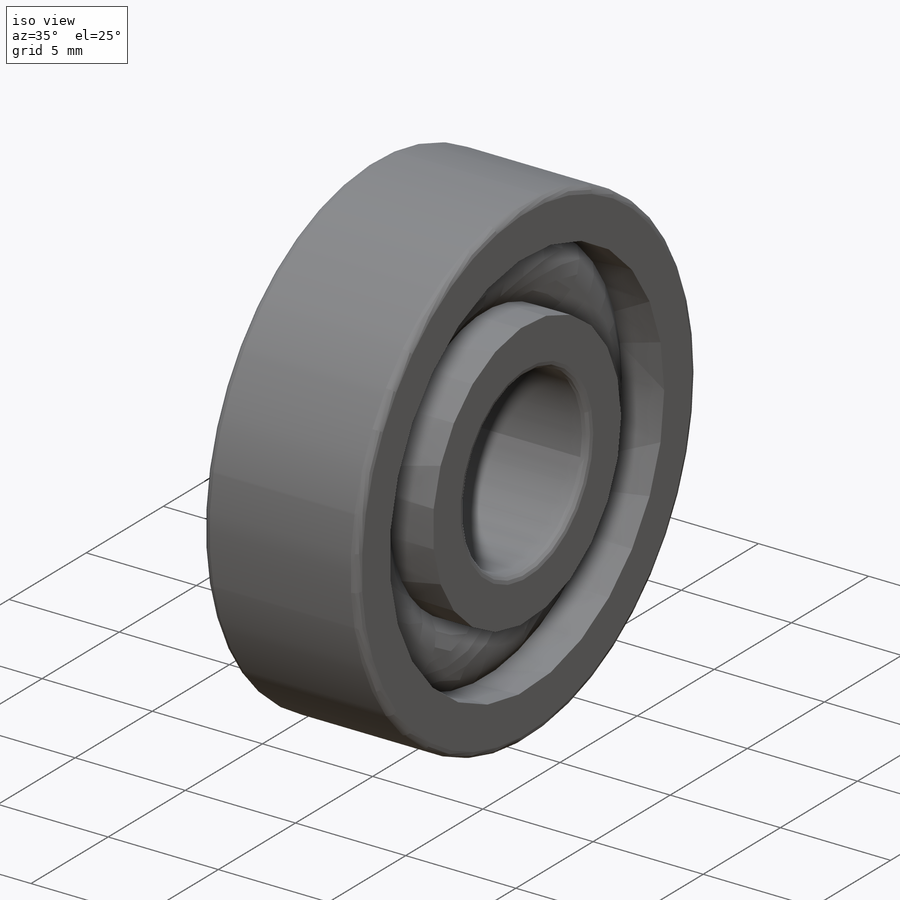
[diagram: iso view]
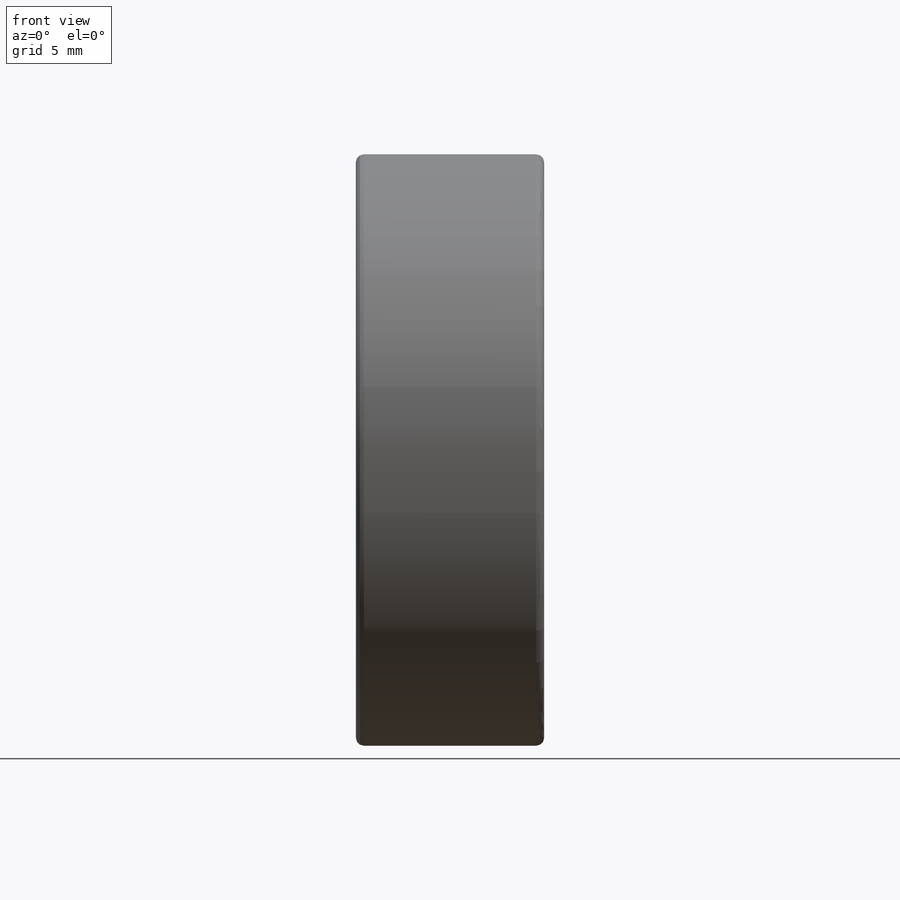
[diagram: front view]
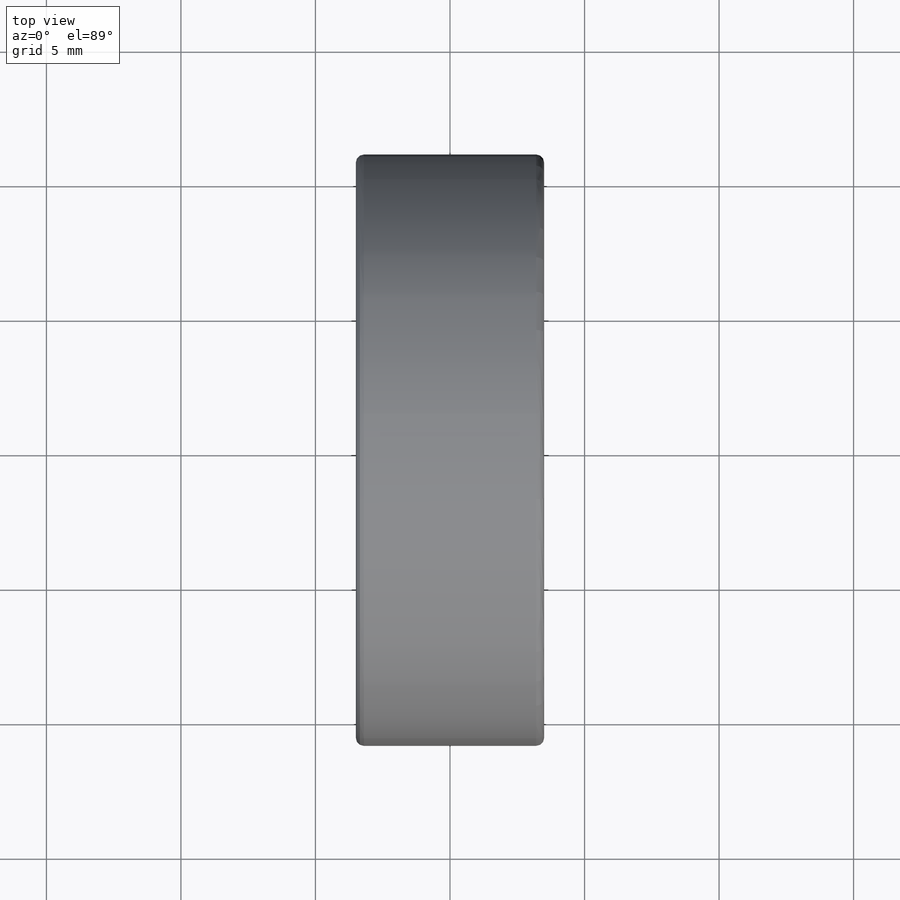
[diagram: top view]
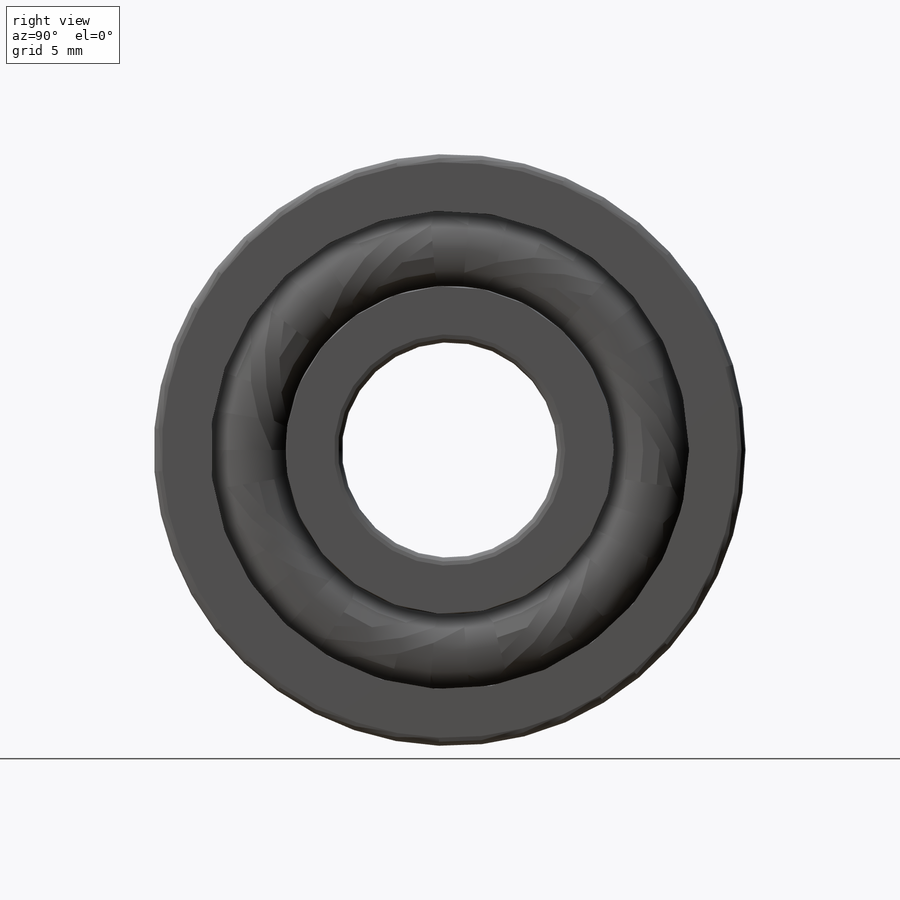
[diagram: right view]
SOLIDWORKS PART (.sldprt)
format: sldprt  version: not decoded by parser v0  size: 306,176 bytes
history: native  units: mm
features: sketch x9, revolve x6, plane x3, cut_revolve x3, pattern_circular x2, material x1 (+10 scaffold rows collapsed; 1 parser-record rows omitted)
feature tree (35):
  scaffold x10  (default folders/planes/origin — collapsed)
  material  "Material <not specified>"
  plane  "Plane1"
  plane  "Plane2"
  plane  "Plane3"
  parser-record x1  (decoder bookkeeping rows leaked as tree rows — omitted from the tree; the rows remain in map.json)
  revolve  "InnerRace"  [1 undecoded]
  sketch  "InnRacSke"  dims[Fillet_radius=0.3mm Ball_diameter=4.15mm ID=8.0mm OD=12.2mm Width=7.0mm BallCLRad=7.5mm D1=360.0deg]
  sketch  "Clipboard"  dims[c1.BallCLRad=22.225mm c2.BallCLRad=7.5mm c2.D2=20.0mm c2.Count=2.0deg c2.D3=~22.36068mm c2.Show_count=2.0deg c2.D1=20.0mm c2.Max_count=2.0deg c3.D1=20.0mm c3.Min_count=1.0deg]
  sketch  "CagSpiSke"  dims[Thickness=0.42mm OD=15.7mm ID=14.3mm]
  revolve  "CageSpine"  Angle=0.001deg
  sketch  "CagBalSke"  dims[CageWallOD=4.62mm BallCLRad=7.5mm]
  revolve  "CageBall"  Angle=360deg
  pattern_circular  "CageBalls"  Count=2 Angle=180deg
  sketch  "CagTrmODSke"  dims[Width=4.622mm ID=15.7mm OD=19.622mm]
  cut_revolve  "CageTrimOD"  Angle=360deg
  sketch  "CagTrmIDSke"  dims[ID=10.382mm OD=14.3mm Width=4.622mm D1=360.0deg]
  sketch  "BalSimSke"  dims[Ball_diameter=4.2mm BallCLRad=7.5mm]
  revolve  "BallsSimplified"  Angle=360deg
  sketch  "BalDetSke"  dims[Ball_diameter=4.2mm BallCLRad=7.5mm]
  revolve  "BallDetailed"  Angle=360deg
  sketch  "OutRacSke"  dims[Fillet_radius=0.3mm Ball_diameter=4.15mm OD=22.0mm ID=17.8mm Width=7.0mm BallCLRad=7.5mm]
  revolve  "OuterRace"  Angle=360deg
  pattern_circular  "BallsDetailed"  Count=2 Angle=180deg CurrentVersion=0mm EditFunction=0mm Type=0mm SubType=0mm Application=0mm STANDARD=0mm TYPE=0mm SIZE=0mm DRAW_CAGE=0mm AUTO_SAVE=0mm CREATION_METHOD=0mm LOCATION_METHOD=0mm
  cut_revolve  "CimBearingSettings6.0"  STANDARD=0mm TYPE=0mm SIZE=0mm DRAW_CAGE=0mm AUTO_SAVE=0mm CREATION_METHOD=0mm LOCATION_METHOD=0mm PartNumberID=0mm ConfigurationName=0mm CopiedFlag=0  [1 undecoded]
  cut_revolve  "SolidworksEditDefinition"  PartNumberID=0mm ConfigurationName=0mm CopiedFlag=0  [1 undecoded]
decode coverage: 19 of 20 modeling features carry decoded parameters
note: ~ marks probable driven/reference dimensions
note: 3 parameter values undecoded
summary: no parameter record found for 3 features
note: suppression state not decoded; provenance and decode notes live in map.json
